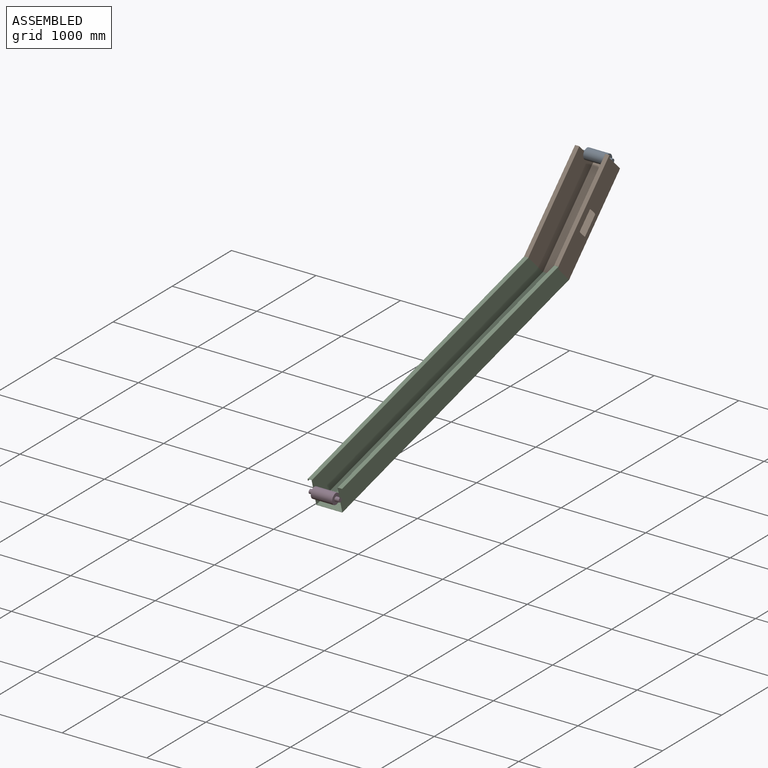
[diagram: assembled view]
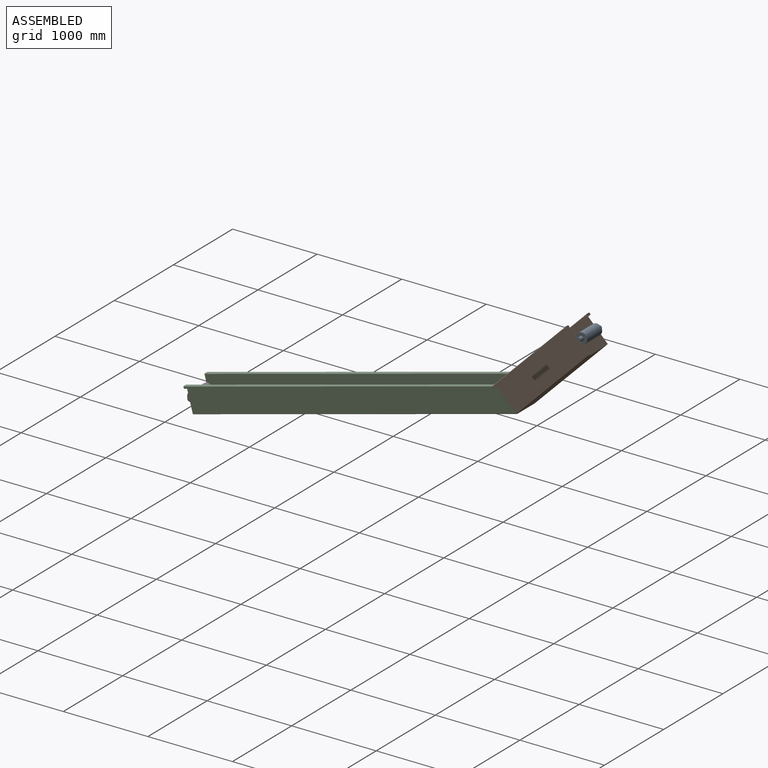
[diagram: assembled view, second angle]
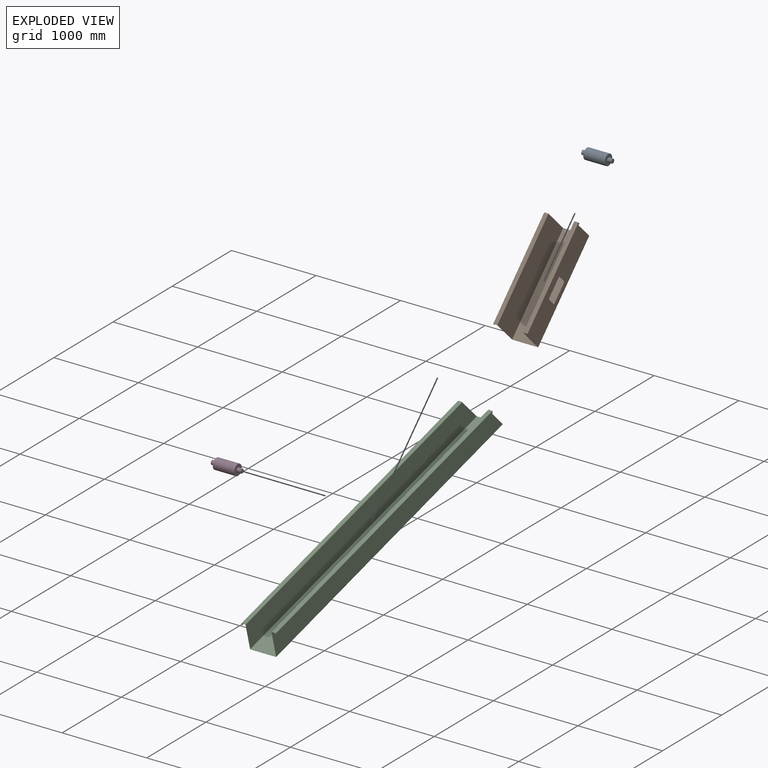
[diagram: exploded view]
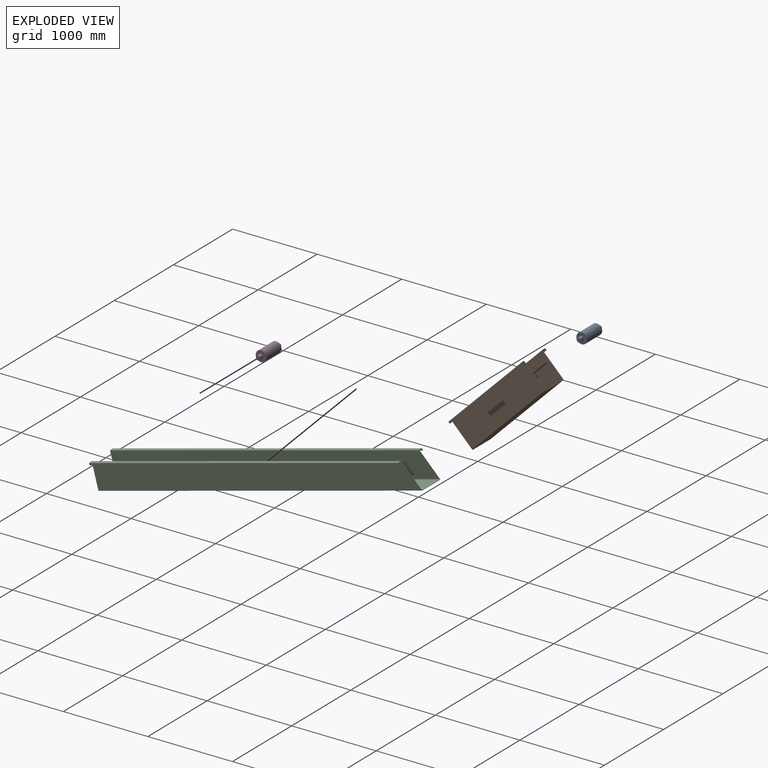
[diagram: exploded view, second angle]
ASSEMBLY  parts=4 mates=3
PART A: 7 faces, bbox 127x355.6x127 mm
  f0: cylinder r=63.5mm len=254mm, axis (0,1,0), area 101341.5mm2, adj f1,f2
  f1: plane 127x127mm, normal (0,-1,0), area 10640.9mm2, adj f0,f5
  f2: plane 127x127mm, normal (0,1,0), area 10640.9mm2, adj f0,f3
  f3: cylinder r=25.4mm len=50.8mm, axis (0,-1,0), area 8107.3mm2, adj f2,f4
  f4: plane 50.8x50.8mm, normal (0,1,0), area 2026.8mm2, adj f3
  f5: cylinder r=25.4mm len=50.8mm, axis (0,1,0), area 8107.3mm2, adj f1,f6
  f6: plane 50.8x50.8mm, normal (0,-1,0), area 2026.8mm2, adj f5
PART B: 62 faces, bbox 406.4x1219.2x358.8 mm
  f0: plane 347.85x3.18mm, normal (0,1,0), area 1104.4mm2, adj f10,f11,f13,f30
  f1: plane 347.85x3.18mm, normal (0,-1,0), area 1104.4mm2, adj f10,f11,f12,f29
  f2: plane 228.6x3.18mm, normal (0,0,-1), area 725.8mm2, adj f3,f9,f10,f11
  f3: cylinder r=12.7mm len=12.7mm, axis (1,0,0), area 63.3mm2, adj f2,f4,f10,f11
  f4: plane 101.6x3.18mm, normal (0,-1,0), area 322.6mm2, adj f3,f5,f10,f11
  f5: cylinder r=12.7mm len=12.7mm, axis (1,0,0), area 63.3mm2, adj f4,f6,f10,f11
  f6: plane 228.6x3.18mm, normal (0,0,1), area 725.8mm2, adj f5,f7,f10,f11
  f7: cylinder r=12.7mm len=12.7mm, axis (1,0,0), area 63.3mm2, adj f6,f8,f10,f11
  f8: plane 101.6x3.18mm, normal (0,1,0), area 322.6mm2, adj f7,f9,f10,f11
  f9: cylinder r=12.7mm len=12.7mm, axis (1,0,0), area 63.3mm2, adj f2,f8,f10,f11
  f10: plane 1219.2x347.85mm, normal (1,0,0), area 391982.8mm2, adj f0,f1,f2,f3,f4,f5,f6,f7
  f11: plane 1219.2x347.85mm, normal (-1,0,0), area 391982.8mm2, adj f0,f1,f2,f3,f4,f5,f6,f7
  f12: plane 5.46x5.46mm, normal (0,-1,0), area 19.3mm2, adj f1,f14,f15,f34
  f13: plane 5.46x5.46mm, normal (0,1,0), area 19.3mm2, adj f0,f14,f15,f33
  f14: cylinder r=5.46mm len=1219.2mm, axis (0,-1,0), area 10458.4mm2, adj f10,f12,f13,f35
  f15: cylinder r=2.29mm len=1219.2mm, axis (0,-1,0), area 4378mm2, adj f11,f12,f13,f36
  f16: plane 39.88x3.18mm, normal (0,1,0), area 126.6mm2, adj f18,f19,f26,f30
  f17: plane 39.88x3.18mm, normal (0,-1,0), area 126.6mm2, adj f18,f19,f25,f29
  f18: plane 1219.2x39.88mm, normal (0,0,-1), area 48619.3mm2, adj f16,f17,f28,f32
  f19: plane 1219.2x39.88mm, normal (0,0,1), area 48619.3mm2, adj f16,f17,f27,f31
  f20: plane 19.94x3.18mm, normal (0,1,0), area 63.3mm2, adj f21,f23,f24,f26
  f21: plane 1219.2x3.18mm, normal (0,0,-1), area 3871mm2, adj f20,f22,f23,f24
  f22: plane 19.94x3.18mm, normal (0,-1,0), area 63.3mm2, adj f21,f23,f24,f25
  f23: plane 1219.2x19.94mm, normal (-1,0,0), area 24309.6mm2, adj f20,f21,f22,f28
  f24: plane 1219.2x19.94mm, normal (1,0,0), area 24309.6mm2, adj f20,f21,f22,f27
  f25: plane 5.46x5.46mm, normal (0,-1,0), area 19.3mm2, adj f17,f22,f27,f28
  f26: plane 5.46x5.46mm, normal (0,1,0), area 19.3mm2, adj f16,f20,f27,f28
  f27: cylinder r=5.46mm len=1219.2mm, axis (0,-1,0), area 10458.4mm2, adj f19,f24,f25,f26
  f28: cylinder r=2.29mm len=1219.2mm, axis (0,-1,0), area 4378mm2, adj f18,f23,f25,f26
  f29: plane 5.46x5.46mm, normal (0,-1,0), area 19.3mm2, adj f1,f17,f31,f32
  f30: plane 5.46x5.46mm, normal (0,1,0), area 19.3mm2, adj f0,f16,f31,f32
  f31: cylinder r=5.46mm len=1219.2mm, axis (0,-1,0), area 10458.4mm2, adj f11,f19,f29,f30
  f32: cylinder r=2.29mm len=1219.2mm, axis (0,-1,0), area 4378mm2, adj f10,f18,f29,f30
  f33: plane 300.23x3.18mm, normal (0,1,0), area 953.2mm2, adj f13,f35,f36,f38
  f34: plane 300.23x3.18mm, normal (0,-1,0), area 953.2mm2, adj f12,f35,f36,f37
  f35: plane 1219.2x300.23mm, normal (0,0,-1), area 366038mm2, adj f14,f33,f34,f39
  f36: plane 1219.2x300.23mm, normal (0,0,1), area 366038mm2, adj f15,f33,f34,f40
  f37: plane 5.46x5.46mm, normal (0,-1,0), area 19.3mm2, adj f34,f39,f40,f42
  f38: plane 5.46x5.46mm, normal (0,1,0), area 19.3mm2, adj f33,f39,f40,f41
  f39: cylinder r=5.46mm len=1219.2mm, axis (0,-1,0), area 10458.4mm2, adj f35,f37,f38,f43
  f40: cylinder r=2.29mm len=1219.2mm, axis (0,-1,0), area 4378mm2, adj f36,f37,f38,f44
  f41: plane 347.85x3.18mm, normal (0,1,0), area 1104.4mm2, adj f38,f43,f44,f54
  f42: plane 347.85x3.18mm, normal (0,-1,0), area 1104.4mm2, adj f37,f43,f44,f53
  f43: plane 1219.2x347.85mm, normal (-1,0,0), area 424102.4mm2, adj f39,f41,f42,f56
  f44: plane 1219.2x347.85mm, normal (1,0,0), area 424102.4mm2, adj f40,f41,f42,f55
  f45: plane 39.88x3.18mm, normal (0,1,0), area 126.6mm2, adj f47,f48,f50,f54
  f46: plane 39.88x3.18mm, normal (0,-1,0), area 126.6mm2, adj f47,f48,f49,f53
  f47: plane 1219.2x39.88mm, normal (0,0,-1), area 48619.3mm2, adj f45,f46,f52,f56
  f48: plane 1219.2x39.88mm, normal (0,0,1), area 48619.3mm2, adj f45,f46,f51,f55
  f49: plane 5.46x5.46mm, normal (0,-1,0), area 19.3mm2, adj f46,f51,f52,f58
  f50: plane 5.46x5.46mm, normal (0,1,0), area 19.3mm2, adj f45,f51,f52,f57
  f51: cylinder r=5.46mm len=1219.2mm, axis (0,-1,0), area 10458.4mm2, adj f48,f49,f50,f61
  f52: cylinder r=2.29mm len=1219.2mm, axis (0,-1,0), area 4378mm2, adj f47,f49,f50,f60
  f53: plane 5.46x5.46mm, normal (0,-1,0), area 19.3mm2, adj f42,f46,f55,f56
  f54: plane 5.46x5.46mm, normal (0,1,0), area 19.3mm2, adj f41,f45,f55,f56
  f55: cylinder r=5.46mm len=1219.2mm, axis (0,-1,0), area 10458.4mm2, adj f44,f48,f53,f54
  f56: cylinder r=2.29mm len=1219.2mm, axis (0,-1,0), area 4378mm2, adj f43,f47,f53,f54
  f57: plane 19.94x3.18mm, normal (0,1,0), area 63.3mm2, adj f50,f59,f60,f61
  f58: plane 19.94x3.18mm, normal (0,-1,0), area 63.3mm2, adj f49,f59,f60,f61
  f59: plane 1219.2x3.18mm, normal (0,0,-1), area 3871mm2, adj f57,f58,f60,f61
  f60: plane 1219.2x19.94mm, normal (1,0,0), area 24309.6mm2, adj f52,f57,f58,f59
  f61: plane 1219.2x19.94mm, normal (-1,0,0), area 24309.6mm2, adj f51,f57,f58,f59
PART C: 54 faces, bbox 406.4x3962.4x308 mm
  f0: plane 19.94x3.18mm, normal (0,-1,0), area 63.3mm2, adj f1,f3,f4,f50
  f1: plane 3787.78x3.18mm, normal (0,0,-1), area 12026.2mm2, adj f0,f2,f3,f4
  f2: plane 19.94x3.18mm, normal (0,1,0), area 63.3mm2, adj f1,f3,f4,f51
  f3: plane 3787.78x19.94mm, normal (1,0,0), area 75524.6mm2, adj f0,f1,f2,f53
  f4: plane 3787.78x19.94mm, normal (-1,0,0), area 75524.6mm2, adj f0,f1,f2,f52
  f5: plane 39.88x3.18mm, normal (0,-1,0), area 126.6mm2, adj f7,f8,f46,f50
  f6: plane 39.88x3.18mm, normal (0,1,0), area 126.6mm2, adj f7,f8,f47,f51
  f7: plane 3787.78x39.88mm, normal (0,0,-1), area 151049.1mm2, adj f5,f6,f49,f53
  f8: plane 3787.78x39.88mm, normal (0,0,1), area 151049.1mm2, adj f5,f6,f48,f52
  f9: plane 297.05x3.18mm, normal (0,-1,0), area 943.1mm2, adj f11,f12,f42,f46
  f10: plane 297.05x171.47mm, normal (0,0.87,0.5), area 1089mm2, adj f11,f12,f43,f47
  f11: plane 3959.25x297.05mm, normal (-1,0,0), area 1150639mm2, adj f9,f10,f44,f49
  f12: plane 3959.25x297.05mm, normal (1,0,0), area 1150639mm2, adj f9,f10,f45,f48
  f13: plane 300.23x3.18mm, normal (0,1,0), area 953.2mm2, adj f15,f16,f39,f43
  f14: plane 300.23x3.18mm, normal (0,-1,0), area 953.2mm2, adj f15,f16,f38,f42
  f15: plane 3962.4x300.23mm, normal (0,0,-1), area 1189623.4mm2, adj f13,f14,f40,f44
  f16: plane 3962.4x300.23mm, normal (0,0,1), area 1189623.4mm2, adj f13,f14,f41,f45
  f17: plane 297.05x171.47mm, normal (0,0.87,0.5), area 1089mm2, adj f19,f20,f35,f39
  f18: plane 297.05x3.18mm, normal (0,-1,0), area 943.1mm2, adj f19,f20,f34,f38
  f19: plane 3959.25x297.05mm, normal (1,0,0), area 1150639mm2, adj f17,f18,f37,f40
  f20: plane 3959.25x297.05mm, normal (-1,0,0), area 1150639mm2, adj f17,f18,f36,f41
  f21: plane 39.88x3.18mm, normal (0,1,0), area 126.6mm2, adj f23,f24,f31,f35
  f22: plane 39.88x3.18mm, normal (0,-1,0), area 126.6mm2, adj f23,f24,f30,f34
  f23: plane 3787.78x39.88mm, normal (0,0,-1), area 151049.1mm2, adj f21,f22,f33,f37
  f24: plane 3787.78x39.88mm, normal (0,0,1), area 151049.1mm2, adj f21,f22,f32,f36
  f25: plane 19.94x3.18mm, normal (0,1,0), area 63.3mm2, adj f26,f28,f29,f31
  f26: plane 3787.78x3.18mm, normal (0,0,-1), area 12026.2mm2, adj f25,f27,f28,f29
  f27: plane 19.94x3.18mm, normal (0,-1,0), area 63.3mm2, adj f26,f28,f29,f30
  f28: plane 3787.78x19.94mm, normal (-1,0,0), area 75524.6mm2, adj f25,f26,f27,f33
  f29: plane 3787.78x19.94mm, normal (1,0,0), area 75524.6mm2, adj f25,f26,f27,f32
  f30: plane 5.46x5.46mm, normal (0,-1,0), area 19.3mm2, adj f22,f27,f32,f33
  f31: plane 5.46x5.46mm, normal (0,1,0), area 19.3mm2, adj f21,f25,f32,f33
  f32: cylinder r=5.46mm len=3787.78mm, axis (0,-1,0), area 32492mm2, adj f24,f29,f30,f31
  f33: cylinder r=2.29mm len=3787.78mm, axis (0,-1,0), area 13601.3mm2, adj f23,f28,f30,f31
  f34: plane 5.46x5.46mm, normal (0,-1,0), area 19.3mm2, adj f18,f22,f36,f37
  f35: plane 5.46x5.46mm, normal (0,1,0), area 19.3mm2, adj f17,f21,f36,f37
  f36: cylinder r=5.46mm len=3787.78mm, axis (0,-1,0), area 32492mm2, adj f20,f24,f34,f35
  f37: cylinder r=2.29mm len=3787.78mm, axis (0,-1,0), area 13601.3mm2, adj f19,f23,f34,f35
  f38: plane 5.46x5.46mm, normal (0,-1,0), area 19.3mm2, adj f14,f18,f40,f41
  f39: bspline ~5.46x5.46mm, area 22mm2, adj f13,f17,f40,f41
  f40: cylinder r=5.46mm len=3962.4mm, axis (0,-1,0), area 33976.4mm2, adj f15,f19,f38,f39
  f41: cylinder r=2.29mm len=3962.4mm, axis (0,-1,0), area 14222.7mm2, adj f16,f20,f38,f39
  f42: plane 5.46x5.46mm, normal (0,-1,0), area 19.3mm2, adj f9,f14,f44,f45
  f43: bspline ~5.46x5.46mm, area 22.1mm2, adj f10,f13,f44,f45
  f44: cylinder r=5.46mm len=3962.4mm, axis (0,-1,0), area 33976.4mm2, adj f11,f15,f42,f43
  f45: cylinder r=2.29mm len=3962.4mm, axis (0,-1,0), area 14223.6mm2, adj f12,f16,f42,f43
  f46: plane 5.46x5.46mm, normal (0,-1,0), area 19.3mm2, adj f5,f9,f48,f49
  f47: plane 5.46x5.46mm, normal (0,1,0), area 19.3mm2, adj f6,f10,f48,f49
  f48: cylinder r=5.46mm len=3787.78mm, axis (0,-1,0), area 32492mm2, adj f8,f12,f46,f47
  f49: cylinder r=2.29mm len=3787.78mm, axis (0,-1,0), area 13601.3mm2, adj f7,f11,f46,f47
  f50: plane 5.46x5.46mm, normal (0,-1,0), area 19.3mm2, adj f0,f5,f52,f53
  f51: plane 5.46x5.46mm, normal (0,1,0), area 19.3mm2, adj f2,f6,f52,f53
  f52: cylinder r=5.46mm len=3787.78mm, axis (0,-1,0), area 32492mm2, adj f4,f8,f50,f51
  f53: cylinder r=2.29mm len=3787.78mm, axis (0,-1,0), area 13601.3mm2, adj f3,f7,f50,f51
PART D: same geometry as A
PLACE A rot(axis=(-0.36,-0.36,-0.86),98.4deg) t=(-1249.72,1156.54,-264.03)mm
PLACE B rot(axis=(1,0,0),45deg) t=(-1408.07,1109.58,-217.07)mm
PLACE C rot(axis=(1,0,0),15deg) t=(-1472.53,358.41,-1021.51)mm
PLACE D rot(axis=(-0.52,-0.52,-0.68),111.7deg) t=(-1249.72,-3447,-2129.02)mm
MATE fastened D.f3 <-> C.f19  axis (1,0,0) through (-1198.92,-3447,-2129.02)mm
MATE fastened B.f42 <-> C.f10  axis (0,-0.71,-0.71) through (-1510.07,294.43,-1126.14)mm
MATE fastened A.f3 <-> B.f10  axis (1,0,0) through (-1198.92,1156.54,-264.03)mm
